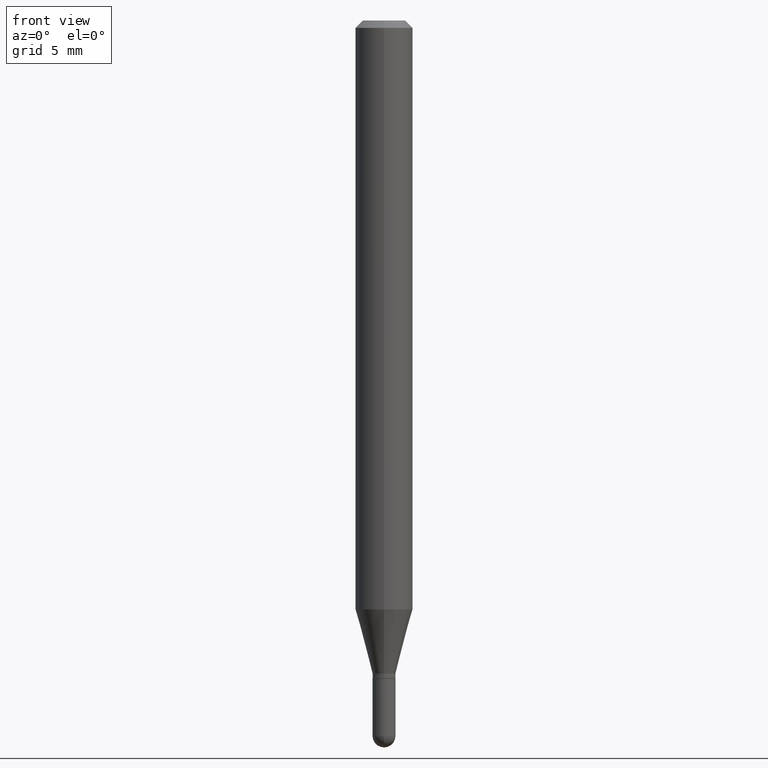
[diagram: clean part render]
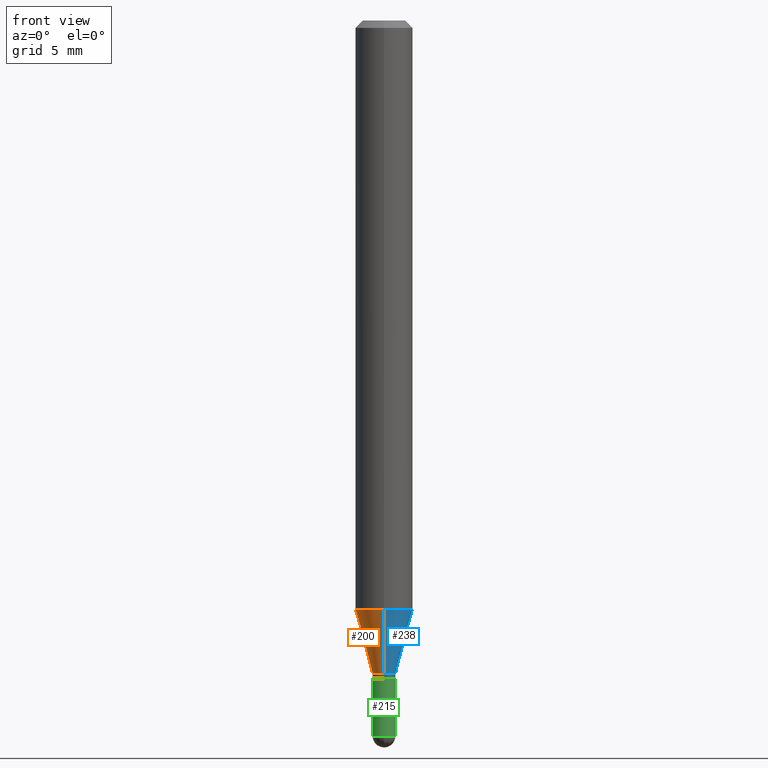
[diagram: same view with three faces highlighted in distinct colors, each labeled with its STEP entity id]
A machine part, front view with three faces highlighted in distinct colors.
Their STEP definitions:

[orange] entity #200 — the highlighted conical surface has half-angle 15 deg.
#7 = CARTESIAN_POINT ( 'NONE',  ( -1.647979191933643482E-16, -0.02360000000000488443, -1.344100000000000072 ) ) ;
#18 = AXIS2_PLACEMENT_3D ( 'NONE', #391, #240, #395 ) ;
#27 = CARTESIAN_POINT ( 'NONE',  ( 1.676880856394178568E-16, 0.02359999999999550305, -1.344100000000000072 ) ) ;
#29 = EDGE_CURVE ( 'NONE', #353, #492, #509, .T. ) ;
#52 = CIRCLE ( 'NONE', #267, 0.02360000000000019374 ) ;
#59 = ORIENTED_EDGE ( 'NONE', *, *, #84, .T. ) ;
#84 = EDGE_CURVE ( 'NONE', #144, #166, #157, .T. ) ;
#101 = CARTESIAN_POINT ( 'NONE',  ( 4.195754854663685822E-16, 0.05904999999999574478, -1.211798798871684735 ) ) ;
#129 = DIRECTION ( 'NONE',  ( -6.982962677686265922E-15, -1.000000000000000000, 0.000000000000000000 ) ) ;
#132 = ORIENTED_EDGE ( 'NONE', *, *, #358, .T. ) ;
#133 = DIRECTION ( 'NONE',  ( -6.982962677686265922E-15, -1.000000000000000000, 0.000000000000000000 ) ) ;
#144 = VERTEX_POINT ( 'NONE', #7 ) ;
#145 = AXIS2_PLACEMENT_3D ( 'NONE', #475, #290, #129 ) ;
#155 = CARTESIAN_POINT ( 'NONE',  ( -1.647979191933643482E-16, -0.02360000000000488443, -1.344100000000000072 ) ) ;
#157 = LINE ( 'NONE', #155, #202 ) ;
#166 = VERTEX_POINT ( 'NONE', #316 ) ;
#174 = EDGE_CURVE ( 'NONE', #492, #166, #425, .T. ) ;
#200 = ADVANCED_FACE ( 'NONE', ( #401 ), #306, .T. ) ;
#202 = VECTOR ( 'NONE', #237, 39.37007874015748143 ) ;
#221 = ORIENTED_EDGE ( 'NONE', *, *, #29, .F. ) ;
#225 = VECTOR ( 'NONE', #393, 39.37007874015748143 ) ;
#235 = ORIENTED_EDGE ( 'NONE', *, *, #174, .F. ) ;
#237 = DIRECTION ( 'NONE',  ( -1.807323732225330928E-15, -0.2588190451025182970, 0.9659258262890689783 ) ) ;
#240 = DIRECTION ( 'NONE',  ( -2.445447466713837781E-29, 3.491511898180612883E-15, 1.000000000000000000 ) ) ;
#267 = AXIS2_PLACEMENT_3D ( 'NONE', #481, #477, #133 ) ;
#268 = EDGE_LOOP ( 'NONE', ( #221, #132, #59, #235 ) ) ;
#290 = DIRECTION ( 'NONE',  ( -2.445447466713837781E-29, 3.491511898180612883E-15, 1.000000000000000000 ) ) ;
#306 = CONICAL_SURFACE ( 'NONE', #145, 0.02360000000000019374, 0.2617993877991502960 ) ;
#316 = CARTESIAN_POINT ( 'NONE',  ( -4.123439461173444997E-16, -0.05905000000000425187, -1.211798798871684291 ) ) ;
#353 = VERTEX_POINT ( 'NONE', #366 ) ;
#358 = EDGE_CURVE ( 'NONE', #353, #144, #52, .T. ) ;
#366 = CARTESIAN_POINT ( 'NONE',  ( 2.936317855528934537E-16, 0.02359999999999549958, -1.344100000000000072 ) ) ;
#391 = CARTESIAN_POINT ( 'NONE',  ( 2.963390302867632407E-29, -4.231009924461461334E-15, -1.211798798871684513 ) ) ;
#393 = DIRECTION ( 'NONE',  ( 1.839019923739601104E-15, 0.2588190451025250693, 0.9659258262890670910 ) ) ;
#395 = DIRECTION ( 'NONE',  ( -6.982962677686265922E-15, -1.000000000000000000, 4.626330217890369336E-15 ) ) ;
#401 = FACE_OUTER_BOUND ( 'NONE', #268, .T. ) ;
#425 = CIRCLE ( 'NONE', #18, 0.05904999999999999832 ) ;
#475 = CARTESIAN_POINT ( 'NONE',  ( 3.286925940010068942E-29, -4.692941142344561547E-15, -1.344100000000000072 ) ) ;
#477 = DIRECTION ( 'NONE',  ( -2.445447466713837781E-29, 3.491511898180612883E-15, 1.000000000000000000 ) ) ;
#481 = CARTESIAN_POINT ( 'NONE',  ( 3.286925940010068942E-29, -4.692941142344561547E-15, -1.344100000000000072 ) ) ;
#492 = VERTEX_POINT ( 'NONE', #101 ) ;
#509 = LINE ( 'NONE', #27, #225 ) ;

[blue] entity #238 — the highlighted conical surface has half-angle 15 deg.
#4 = AXIS2_PLACEMENT_3D ( 'NONE', #460, #348, #6 ) ;
#6 = DIRECTION ( 'NONE',  ( -6.982962677686265922E-15, -1.000000000000000000, 0.000000000000000000 ) ) ;
#7 = CARTESIAN_POINT ( 'NONE',  ( -1.647979191933643482E-16, -0.02360000000000488443, -1.344100000000000072 ) ) ;
#8 = DIRECTION ( 'NONE',  ( -6.982962677686265922E-15, -1.000000000000000000, 0.000000000000000000 ) ) ;
#27 = CARTESIAN_POINT ( 'NONE',  ( 1.676880856394178568E-16, 0.02359999999999550305, -1.344100000000000072 ) ) ;
#28 = CONICAL_SURFACE ( 'NONE', #277, 0.02360000000000019374, 0.2617993877991502960 ) ;
#29 = EDGE_CURVE ( 'NONE', #353, #492, #509, .T. ) ;
#41 = EDGE_CURVE ( 'NONE', #144, #353, #161, .T. ) ;
#46 = ORIENTED_EDGE ( 'NONE', *, *, #29, .T. ) ;
#73 = DIRECTION ( 'NONE',  ( -2.445447466713837781E-29, 3.491511898180612883E-15, 1.000000000000000000 ) ) ;
#78 = EDGE_LOOP ( 'NONE', ( #501, #46, #104, #87 ) ) ;
#84 = EDGE_CURVE ( 'NONE', #144, #166, #157, .T. ) ;
#87 = ORIENTED_EDGE ( 'NONE', *, *, #84, .F. ) ;
#101 = CARTESIAN_POINT ( 'NONE',  ( 4.195754854663685822E-16, 0.05904999999999574478, -1.211798798871684735 ) ) ;
#104 = ORIENTED_EDGE ( 'NONE', *, *, #128, .F. ) ;
#128 = EDGE_CURVE ( 'NONE', #166, #492, #435, .T. ) ;
#134 = CARTESIAN_POINT ( 'NONE',  ( 3.286925940010068942E-29, -4.692941142344561547E-15, -1.344100000000000072 ) ) ;
#144 = VERTEX_POINT ( 'NONE', #7 ) ;
#155 = CARTESIAN_POINT ( 'NONE',  ( -1.647979191933643482E-16, -0.02360000000000488443, -1.344100000000000072 ) ) ;
#157 = LINE ( 'NONE', #155, #202 ) ;
#160 = DIRECTION ( 'NONE',  ( -6.982962677686265922E-15, -1.000000000000000000, 4.626330217890369336E-15 ) ) ;
#161 = CIRCLE ( 'NONE', #4, 0.02360000000000019374 ) ;
#166 = VERTEX_POINT ( 'NONE', #316 ) ;
#177 = AXIS2_PLACEMENT_3D ( 'NONE', #272, #73, #160 ) ;
#202 = VECTOR ( 'NONE', #237, 39.37007874015748143 ) ;
#210 = FACE_OUTER_BOUND ( 'NONE', #78, .T. ) ;
#212 = DIRECTION ( 'NONE',  ( -2.445447466713837781E-29, 3.491511898180612883E-15, 1.000000000000000000 ) ) ;
#225 = VECTOR ( 'NONE', #393, 39.37007874015748143 ) ;
#237 = DIRECTION ( 'NONE',  ( -1.807323732225330928E-15, -0.2588190451025182970, 0.9659258262890689783 ) ) ;
#238 = ADVANCED_FACE ( 'NONE', ( #210 ), #28, .T. ) ;
#272 = CARTESIAN_POINT ( 'NONE',  ( 2.963390302867632407E-29, -4.231009924461461334E-15, -1.211798798871684513 ) ) ;
#277 = AXIS2_PLACEMENT_3D ( 'NONE', #134, #212, #8 ) ;
#316 = CARTESIAN_POINT ( 'NONE',  ( -4.123439461173444997E-16, -0.05905000000000425187, -1.211798798871684291 ) ) ;
#348 = DIRECTION ( 'NONE',  ( -2.445447466713837781E-29, 3.491511898180612883E-15, 1.000000000000000000 ) ) ;
#353 = VERTEX_POINT ( 'NONE', #366 ) ;
#366 = CARTESIAN_POINT ( 'NONE',  ( 2.936317855528934537E-16, 0.02359999999999549958, -1.344100000000000072 ) ) ;
#393 = DIRECTION ( 'NONE',  ( 1.839019923739601104E-15, 0.2588190451025250693, 0.9659258262890670910 ) ) ;
#435 = CIRCLE ( 'NONE', #177, 0.05904999999999999832 ) ;
#460 = CARTESIAN_POINT ( 'NONE',  ( 3.286925940010068942E-29, -4.692941142344561547E-15, -1.344100000000000072 ) ) ;
#492 = VERTEX_POINT ( 'NONE', #101 ) ;
#501 = ORIENTED_EDGE ( 'NONE', *, *, #41, .T. ) ;
#509 = LINE ( 'NONE', #27, #225 ) ;

[green] entity #215 — the highlighted cylindrical surface (edge-blend (fillet) strip) has radius 0.5994 mm, axis along (-0, 0, 1).
#1 = DIRECTION ( 'NONE',  ( -2.445468806185136597E-29, 3.491481338843145583E-15, 1.000000000000000000 ) ) ;
#9 = DIRECTION ( 'NONE',  ( 1.000000000000000000, -6.982962677686267499E-15, 4.876176775795935793E-29 ) ) ;
#21 = DIRECTION ( 'NONE',  ( -2.445468806185136597E-29, 3.491481338843145583E-15, 1.000000000000000000 ) ) ;
#23 = LINE ( 'NONE', #411, #478 ) ;
#33 = CARTESIAN_POINT ( 'NONE',  ( -0.02360000000000000292, -4.767346212748459573E-15, -1.472499999999999698 ) ) ;
#34 = VERTEX_POINT ( 'NONE', #419 ) ;
#47 = LINE ( 'NONE', #256, #347 ) ;
#48 = CARTESIAN_POINT ( 'NONE',  ( 0.000000000000000000, 0.000000000000000000, 0.000000000000000000 ) ) ;
#62 = DIRECTION ( 'NONE',  ( 1.000000000000000000, -6.982962677686258033E-15, 0.000000000000000000 ) ) ;
#69 = ORIENTED_EDGE ( 'NONE', *, *, #462, .F. ) ;
#74 = CIRCLE ( 'NONE', #254, 0.02360000000000000292 ) ;
#92 = FACE_OUTER_BOUND ( 'NONE', #314, .T. ) ;
#96 = EDGE_CURVE ( 'NONE', #301, #480, #74, .T. ) ;
#123 = AXIS2_PLACEMENT_3D ( 'NONE', #176, #414, #498 ) ;
#127 = DIRECTION ( 'NONE',  ( 1.000000000000000000, -6.982962677686258033E-15, 0.000000000000000000 ) ) ;
#136 = ORIENTED_EDGE ( 'NONE', *, *, #381, .F. ) ;
#152 = CIRCLE ( 'NONE', #331, 0.02360000000000000292 ) ;
#158 = VERTEX_POINT ( 'NONE', #33 ) ;
#176 = CARTESIAN_POINT ( 'NONE',  ( 3.312142951097148704E-29, -4.728862325329155827E-15, -1.354399999999999826 ) ) ;
#187 = VERTEX_POINT ( 'NONE', #204 ) ;
#204 = CARTESIAN_POINT ( 'NONE',  ( -0.02360000000000000292, -4.767346212748459573E-15, -1.354399999999999826 ) ) ;
#211 = ORIENTED_EDGE ( 'NONE', *, *, #494, .T. ) ;
#215 = ADVANCED_FACE ( 'NONE', ( #92 ), #398, .T. ) ;
#224 = EDGE_CURVE ( 'NONE', #480, #34, #47, .T. ) ;
#254 = AXIS2_PLACEMENT_3D ( 'NONE', #354, #1, #127 ) ;
#256 = CARTESIAN_POINT ( 'NONE',  ( 0.02360000000000000292, -1.647979191933959273E-16, 1.150777719087840955E-30 ) ) ;
#286 = DIRECTION ( 'NONE',  ( -2.445468806185136877E-29, 3.491481338843145188E-15, 1.000000000000000000 ) ) ;
#294 = CARTESIAN_POINT ( 'NONE',  ( -1.647979191933593685E-16, -0.02360000000000507178, -1.472499999999999698 ) ) ;
#300 = CARTESIAN_POINT ( 'NONE',  ( 3.600952817107612585E-29, -5.141206271446529958E-15, -1.472499999999999698 ) ) ;
#301 = VERTEX_POINT ( 'NONE', #294 ) ;
#314 = EDGE_LOOP ( 'NONE', ( #136, #211, #428, #439, #69 ) ) ;
#331 = AXIS2_PLACEMENT_3D ( 'NONE', #300, #21, #62 ) ;
#347 = VECTOR ( 'NONE', #286, 39.37007874015748143 ) ;
#354 = CARTESIAN_POINT ( 'NONE',  ( 3.600952817107612585E-29, -5.141206271446529958E-15, -1.472499999999999698 ) ) ;
#355 = CIRCLE ( 'NONE', #123, 0.02360000000000000292 ) ;
#362 = DIRECTION ( 'NONE',  ( -2.445468806185136597E-29, 3.491481338843145583E-15, 1.000000000000000000 ) ) ;
#371 = AXIS2_PLACEMENT_3D ( 'NONE', #48, #362, #9 ) ;
#381 = EDGE_CURVE ( 'NONE', #158, #187, #23, .T. ) ;
#398 = CYLINDRICAL_SURFACE ( 'NONE', #371, 0.02360000000000000292 ) ;
#411 = CARTESIAN_POINT ( 'NONE',  ( -0.02360000000000000292, 1.676880856393836646E-16, -1.160868681300157803E-30 ) ) ;
#414 = DIRECTION ( 'NONE',  ( -2.445468806185136597E-29, 3.491481338843145583E-15, 1.000000000000000000 ) ) ;
#419 = CARTESIAN_POINT ( 'NONE',  ( 0.02360000000000000292, -4.893660244522551286E-15, -1.354399999999999826 ) ) ;
#428 = ORIENTED_EDGE ( 'NONE', *, *, #96, .T. ) ;
#439 = ORIENTED_EDGE ( 'NONE', *, *, #224, .T. ) ;
#452 = DIRECTION ( 'NONE',  ( -2.445468806185136877E-29, 3.491481338843145188E-15, 1.000000000000000000 ) ) ;
#455 = CARTESIAN_POINT ( 'NONE',  ( 0.02360000000000000292, -5.099832217581239141E-15, -1.472499999999999698 ) ) ;
#462 = EDGE_CURVE ( 'NONE', #187, #34, #355, .T. ) ;
#478 = VECTOR ( 'NONE', #452, 39.37007874015748143 ) ;
#480 = VERTEX_POINT ( 'NONE', #455 ) ;
#494 = EDGE_CURVE ( 'NONE', #158, #301, #152, .T. ) ;
#498 = DIRECTION ( 'NONE',  ( 1.000000000000000000, -6.982962677686258033E-15, 0.000000000000000000 ) ) ;